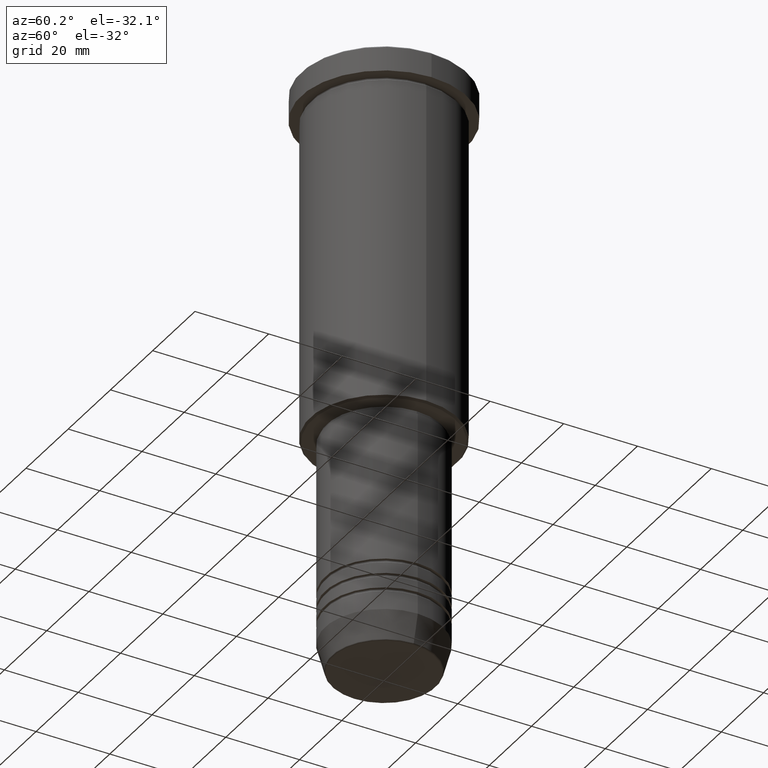
[diagram: clean part render]
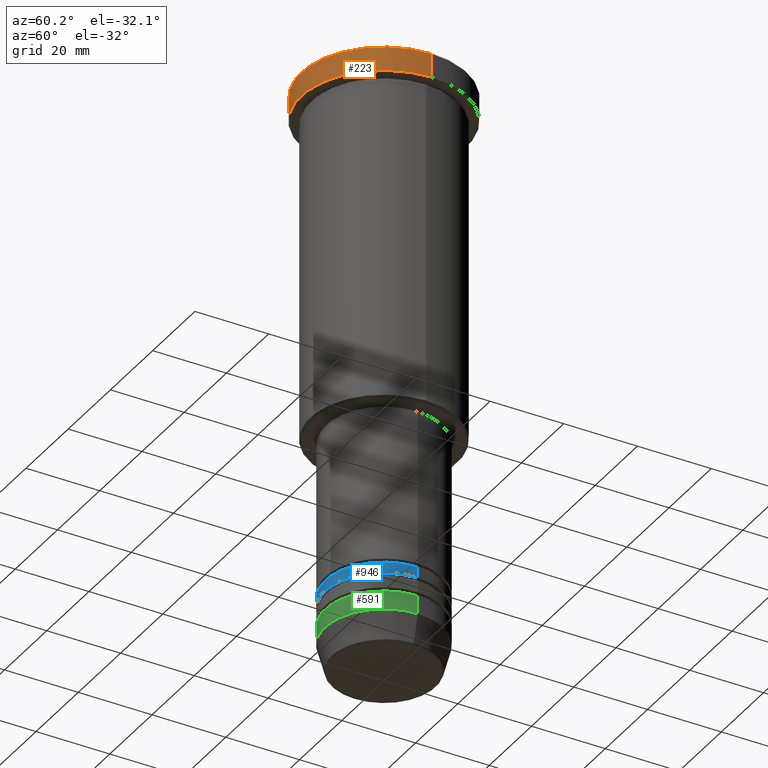
[diagram: same view with three faces highlighted in distinct colors, each labeled with its STEP entity id]
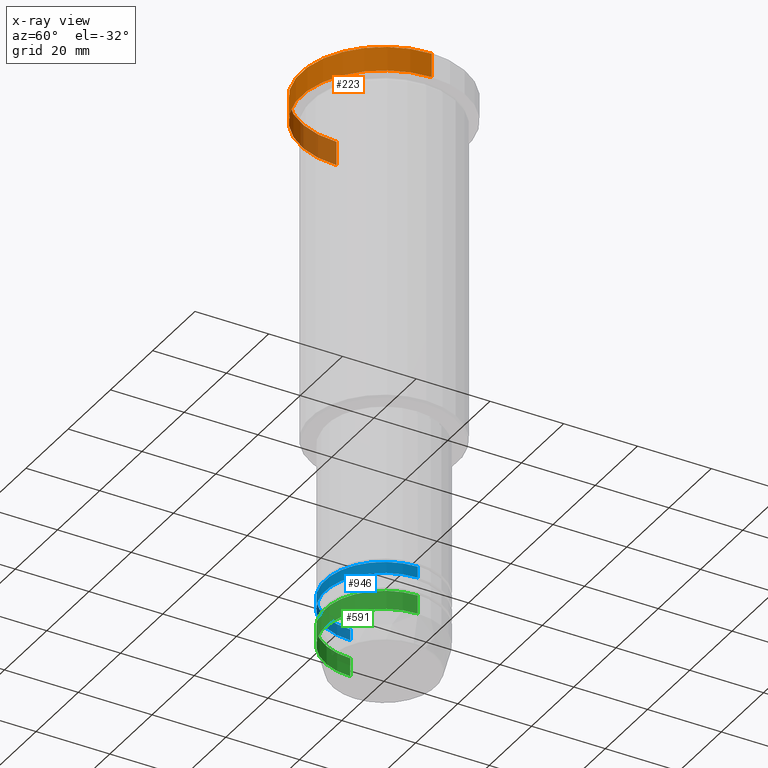
[diagram: x-ray of the same camera — body ghosted, the three highlighted faces saturated]
A machine part, auxiliary view with three faces highlighted in distinct colors.
The next image is the same camera in x-ray (body ghosted, the three faces saturated) — at least one of them is partly hidden behind the body in this view.
Their STEP definitions:

[orange] entity #223 — the highlighted cylindrical surface (partial cylindrical patch) has radius 22.5 mm, axis along (-0, -0, 1).
#1 = EDGE_CURVE ( 'NONE', #128, #1183, #60, .T. ) ;
#8 = DIRECTION ( 'NONE',  ( 1.000000000000000000, 0.000000000000000000, 0.000000000000000000 ) ) ;
#31 = DIRECTION ( 'NONE',  ( 0.000000000000000000, 0.000000000000000000, -1.000000000000000000 ) ) ;
#60 = LINE ( 'NONE', #800, #414 ) ;
#91 = LINE ( 'NONE', #462, #579 ) ;
#101 = AXIS2_PLACEMENT_3D ( 'NONE', #305, #31, #8 ) ;
#107 = EDGE_LOOP ( 'NONE', ( #445, #569, #919, #1086 ) ) ;
#128 = VERTEX_POINT ( 'NONE', #452 ) ;
#135 = VERTEX_POINT ( 'NONE', #374 ) ;
#154 = EDGE_CURVE ( 'NONE', #128, #135, #655, .T. ) ;
#173 = CARTESIAN_POINT ( 'NONE',  ( 0.000000000000000000, 0.000000000000000000, -6.999999999999995559 ) ) ;
#223 = ADVANCED_FACE ( 'NONE', ( #499 ), #846, .T. ) ;
#267 = DIRECTION ( 'NONE',  ( -0.000000000000000000, -0.000000000000000000, 1.000000000000000000 ) ) ;
#305 = CARTESIAN_POINT ( 'NONE',  ( 0.000000000000000000, 0.000000000000000000, -0.4999999999999796274 ) ) ;
#374 = CARTESIAN_POINT ( 'NONE',  ( 22.50000000000000000, 0.000000000000000000, -6.999999999999995559 ) ) ;
#414 = VECTOR ( 'NONE', #711, 1000.000000000000000 ) ;
#445 = ORIENTED_EDGE ( 'NONE', *, *, #1, .F. ) ;
#452 = CARTESIAN_POINT ( 'NONE',  ( -22.50000000000000000, 2.755455298081544778E-15, -6.999999999999995559 ) ) ;
#462 = CARTESIAN_POINT ( 'NONE',  ( 22.50000000000000000, 0.000000000000000000, 0.000000000000000000 ) ) ;
#499 = FACE_OUTER_BOUND ( 'NONE', #107, .T. ) ;
#569 = ORIENTED_EDGE ( 'NONE', *, *, #154, .T. ) ;
#579 = VECTOR ( 'NONE', #1098, 1000.000000000000000 ) ;
#646 = EDGE_CURVE ( 'NONE', #135, #827, #91, .T. ) ;
#655 = CIRCLE ( 'NONE', #765, 22.50000000000000000 ) ;
#657 = DIRECTION ( 'NONE',  ( 1.000000000000000000, 0.000000000000000000, 0.000000000000000000 ) ) ;
#661 = CARTESIAN_POINT ( 'NONE',  ( -22.50000000000000000, 2.755455298081544778E-15, -0.4999999999999796274 ) ) ;
#681 = CARTESIAN_POINT ( 'NONE',  ( 0.000000000000000000, 0.000000000000000000, 0.000000000000000000 ) ) ;
#711 = DIRECTION ( 'NONE',  ( -0.000000000000000000, -0.000000000000000000, 1.000000000000000000 ) ) ;
#725 = AXIS2_PLACEMENT_3D ( 'NONE', #681, #753, #833 ) ;
#753 = DIRECTION ( 'NONE',  ( -0.000000000000000000, -0.000000000000000000, 1.000000000000000000 ) ) ;
#765 = AXIS2_PLACEMENT_3D ( 'NONE', #173, #267, #657 ) ;
#800 = CARTESIAN_POINT ( 'NONE',  ( -22.50000000000000000, 2.755455298081544778E-15, 0.000000000000000000 ) ) ;
#827 = VERTEX_POINT ( 'NONE', #960 ) ;
#833 = DIRECTION ( 'NONE',  ( 1.000000000000000000, 0.000000000000000000, 0.000000000000000000 ) ) ;
#846 = CYLINDRICAL_SURFACE ( 'NONE', #725, 22.50000000000000000 ) ;
#919 = ORIENTED_EDGE ( 'NONE', *, *, #646, .T. ) ;
#960 = CARTESIAN_POINT ( 'NONE',  ( 22.50000000000000000, 0.000000000000000000, -0.4999999999999796274 ) ) ;
#991 = CIRCLE ( 'NONE', #101, 22.50000000000000000 ) ;
#1086 = ORIENTED_EDGE ( 'NONE', *, *, #1106, .T. ) ;
#1098 = DIRECTION ( 'NONE',  ( -0.000000000000000000, -0.000000000000000000, 1.000000000000000000 ) ) ;
#1106 = EDGE_CURVE ( 'NONE', #827, #1183, #991, .T. ) ;
#1183 = VERTEX_POINT ( 'NONE', #661 ) ;

[blue] entity #946 — the highlighted cylindrical surface (partial cylindrical patch) has radius 16 mm, axis along (-0, -0, 1).
#180 = VERTEX_POINT ( 'NONE', #457 ) ;
#214 = DIRECTION ( 'NONE',  ( -0.000000000000000000, -0.000000000000000000, 1.000000000000000000 ) ) ;
#228 = AXIS2_PLACEMENT_3D ( 'NONE', #398, #320, #963 ) ;
#245 = CARTESIAN_POINT ( 'NONE',  ( -16.00000000000000355, 1.959434878635765526E-15, -142.5000000000000000 ) ) ;
#254 = DIRECTION ( 'NONE',  ( -0.000000000000000000, -0.000000000000000000, 1.000000000000000000 ) ) ;
#284 = ORIENTED_EDGE ( 'NONE', *, *, #312, .F. ) ;
#312 = EDGE_CURVE ( 'NONE', #889, #180, #317, .T. ) ;
#317 = LINE ( 'NONE', #1034, #326 ) ;
#320 = DIRECTION ( 'NONE',  ( -0.000000000000000000, -0.000000000000000000, 1.000000000000000000 ) ) ;
#326 = VECTOR ( 'NONE', #214, 1000.000000000000000 ) ;
#345 = CARTESIAN_POINT ( 'NONE',  ( 16.00000000000000355, 0.000000000000000000, -142.5000000000000000 ) ) ;
#346 = EDGE_CURVE ( 'NONE', #1010, #897, #413, .T. ) ;
#351 = CYLINDRICAL_SURFACE ( 'NONE', #487, 16.00000000000000000 ) ;
#370 = CARTESIAN_POINT ( 'NONE',  ( 0.000000000000000000, 0.000000000000000000, 0.000000000000000000 ) ) ;
#398 = CARTESIAN_POINT ( 'NONE',  ( 0.000000000000000000, 0.000000000000000000, -142.5000000000000000 ) ) ;
#413 = LINE ( 'NONE', #1048, #1111 ) ;
#437 = EDGE_CURVE ( 'NONE', #889, #1010, #743, .T. ) ;
#457 = CARTESIAN_POINT ( 'NONE',  ( -16.00000000000000000, 1.959434878635765131E-15, -139.4999999999999716 ) ) ;
#465 = CIRCLE ( 'NONE', #1135, 16.00000000000000000 ) ;
#487 = AXIS2_PLACEMENT_3D ( 'NONE', #370, #254, #987 ) ;
#500 = ORIENTED_EDGE ( 'NONE', *, *, #839, .F. ) ;
#516 = DIRECTION ( 'NONE',  ( -0.000000000000000000, -0.000000000000000000, 1.000000000000000000 ) ) ;
#714 = ORIENTED_EDGE ( 'NONE', *, *, #437, .T. ) ;
#743 = CIRCLE ( 'NONE', #228, 16.00000000000000355 ) ;
#839 = EDGE_CURVE ( 'NONE', #180, #897, #465, .T. ) ;
#869 = CARTESIAN_POINT ( 'NONE',  ( 0.000000000000000000, 0.000000000000000000, -139.4999999999999716 ) ) ;
#889 = VERTEX_POINT ( 'NONE', #245 ) ;
#897 = VERTEX_POINT ( 'NONE', #969 ) ;
#910 = FACE_OUTER_BOUND ( 'NONE', #1017, .T. ) ;
#946 = ADVANCED_FACE ( 'NONE', ( #910 ), #351, .T. ) ;
#956 = DIRECTION ( 'NONE',  ( -0.000000000000000000, -0.000000000000000000, 1.000000000000000000 ) ) ;
#963 = DIRECTION ( 'NONE',  ( 1.000000000000000000, 0.000000000000000000, 0.000000000000000000 ) ) ;
#969 = CARTESIAN_POINT ( 'NONE',  ( 16.00000000000000000, 0.000000000000000000, -139.4999999999999716 ) ) ;
#987 = DIRECTION ( 'NONE',  ( 1.000000000000000000, 0.000000000000000000, 0.000000000000000000 ) ) ;
#1010 = VERTEX_POINT ( 'NONE', #345 ) ;
#1017 = EDGE_LOOP ( 'NONE', ( #284, #714, #1123, #500 ) ) ;
#1034 = CARTESIAN_POINT ( 'NONE',  ( -16.00000000000000000, 1.959434878635765131E-15, 0.000000000000000000 ) ) ;
#1048 = CARTESIAN_POINT ( 'NONE',  ( 16.00000000000000000, 0.000000000000000000, 0.000000000000000000 ) ) ;
#1111 = VECTOR ( 'NONE', #956, 1000.000000000000000 ) ;
#1123 = ORIENTED_EDGE ( 'NONE', *, *, #346, .T. ) ;
#1135 = AXIS2_PLACEMENT_3D ( 'NONE', #869, #516, #1155 ) ;
#1155 = DIRECTION ( 'NONE',  ( 1.000000000000000000, 0.000000000000000000, 0.000000000000000000 ) ) ;

[green] entity #591 — the highlighted cylindrical surface (partial cylindrical patch) has radius 16 mm, axis along (-0, -0, 1).
#9 = DIRECTION ( 'NONE',  ( 1.000000000000000000, 0.000000000000000000, 0.000000000000000000 ) ) ;
#38 = DIRECTION ( 'NONE',  ( -0.000000000000000000, -0.000000000000000000, 1.000000000000000000 ) ) ;
#43 = DIRECTION ( 'NONE',  ( -0.000000000000000000, -0.000000000000000000, 1.000000000000000000 ) ) ;
#84 = DIRECTION ( 'NONE',  ( -0.000000000000000000, -0.000000000000000000, 1.000000000000000000 ) ) ;
#207 = DIRECTION ( 'NONE',  ( 1.000000000000000000, 0.000000000000000000, 0.000000000000000000 ) ) ;
#211 = CARTESIAN_POINT ( 'NONE',  ( -16.00000000000000000, 1.959434878635765131E-15, 0.000000000000000000 ) ) ;
#232 = VECTOR ( 'NONE', #43, 1000.000000000000000 ) ;
#250 = CARTESIAN_POINT ( 'NONE',  ( -16.00000000000000000, 1.959434878635765131E-15, -147.5000000000000000 ) ) ;
#258 = EDGE_CURVE ( 'NONE', #898, #1150, #1085, .T. ) ;
#261 = CYLINDRICAL_SURFACE ( 'NONE', #809, 16.00000000000000000 ) ;
#304 = DIRECTION ( 'NONE',  ( -0.000000000000000000, -0.000000000000000000, 1.000000000000000000 ) ) ;
#325 = DIRECTION ( 'NONE',  ( 1.000000000000000000, 0.000000000000000000, 0.000000000000000000 ) ) ;
#354 = EDGE_CURVE ( 'NONE', #1157, #1150, #683, .T. ) ;
#375 = ORIENTED_EDGE ( 'NONE', *, *, #1159, .F. ) ;
#385 = AXIS2_PLACEMENT_3D ( 'NONE', #1114, #38, #207 ) ;
#412 = VECTOR ( 'NONE', #744, 1000.000000000000000 ) ;
#432 = EDGE_CURVE ( 'NONE', #1035, #1157, #571, .T. ) ;
#464 = ORIENTED_EDGE ( 'NONE', *, *, #432, .T. ) ;
#492 = CARTESIAN_POINT ( 'NONE',  ( 16.00000000000000000, 0.000000000000000000, -147.5000000000000000 ) ) ;
#553 = AXIS2_PLACEMENT_3D ( 'NONE', #951, #304, #325 ) ;
#571 = CIRCLE ( 'NONE', #553, 16.00000000000000000 ) ;
#591 = ADVANCED_FACE ( 'NONE', ( #1078 ), #261, .T. ) ;
#631 = CARTESIAN_POINT ( 'NONE',  ( 0.000000000000000000, 0.000000000000000000, 0.000000000000000000 ) ) ;
#654 = CARTESIAN_POINT ( 'NONE',  ( 16.00000000000000000, 0.000000000000000000, -152.5000000000000000 ) ) ;
#682 = ORIENTED_EDGE ( 'NONE', *, *, #354, .T. ) ;
#683 = LINE ( 'NONE', #844, #232 ) ;
#744 = DIRECTION ( 'NONE',  ( -0.000000000000000000, -0.000000000000000000, 1.000000000000000000 ) ) ;
#809 = AXIS2_PLACEMENT_3D ( 'NONE', #631, #84, #9 ) ;
#844 = CARTESIAN_POINT ( 'NONE',  ( 16.00000000000000000, 0.000000000000000000, 0.000000000000000000 ) ) ;
#898 = VERTEX_POINT ( 'NONE', #250 ) ;
#926 = LINE ( 'NONE', #211, #412 ) ;
#944 = ORIENTED_EDGE ( 'NONE', *, *, #258, .F. ) ;
#951 = CARTESIAN_POINT ( 'NONE',  ( 0.000000000000000000, 0.000000000000000000, -152.5000000000000000 ) ) ;
#1035 = VERTEX_POINT ( 'NONE', #1097 ) ;
#1078 = FACE_OUTER_BOUND ( 'NONE', #1100, .T. ) ;
#1085 = CIRCLE ( 'NONE', #385, 16.00000000000000000 ) ;
#1097 = CARTESIAN_POINT ( 'NONE',  ( -16.00000000000000000, 1.959434878635765131E-15, -152.5000000000000000 ) ) ;
#1100 = EDGE_LOOP ( 'NONE', ( #375, #464, #682, #944 ) ) ;
#1114 = CARTESIAN_POINT ( 'NONE',  ( 0.000000000000000000, 0.000000000000000000, -147.5000000000000000 ) ) ;
#1150 = VERTEX_POINT ( 'NONE', #492 ) ;
#1157 = VERTEX_POINT ( 'NONE', #654 ) ;
#1159 = EDGE_CURVE ( 'NONE', #1035, #898, #926, .T. ) ;